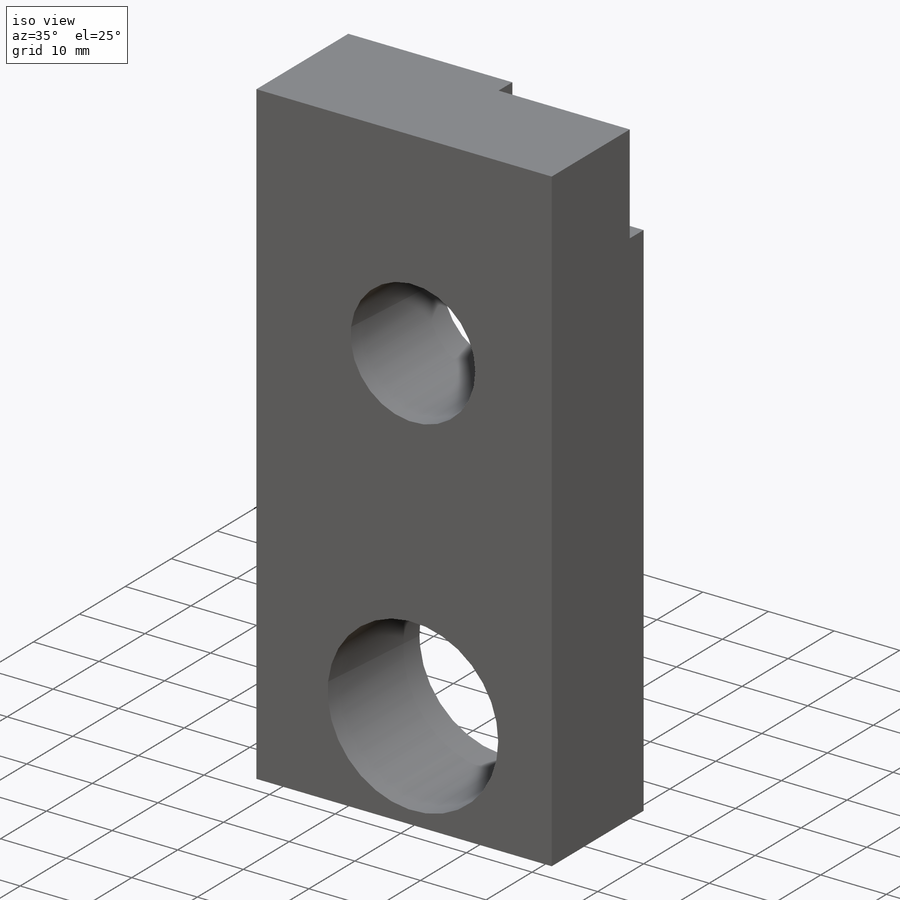
[diagram: iso view]
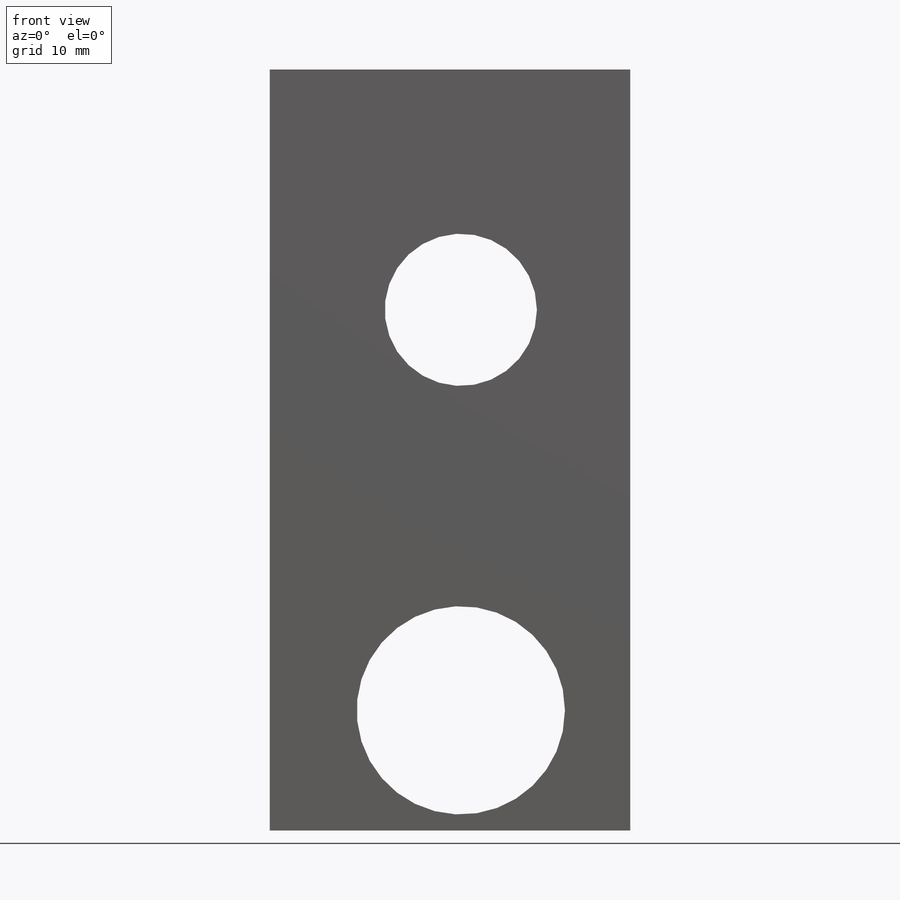
[diagram: front view]
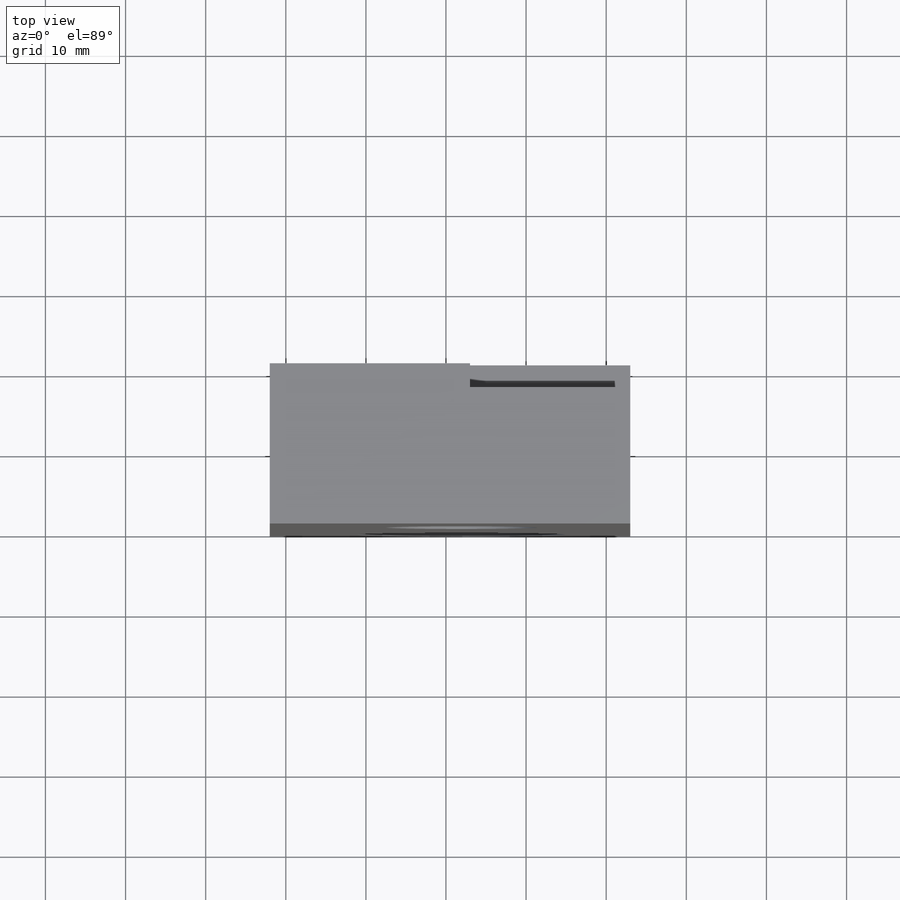
[diagram: top view]
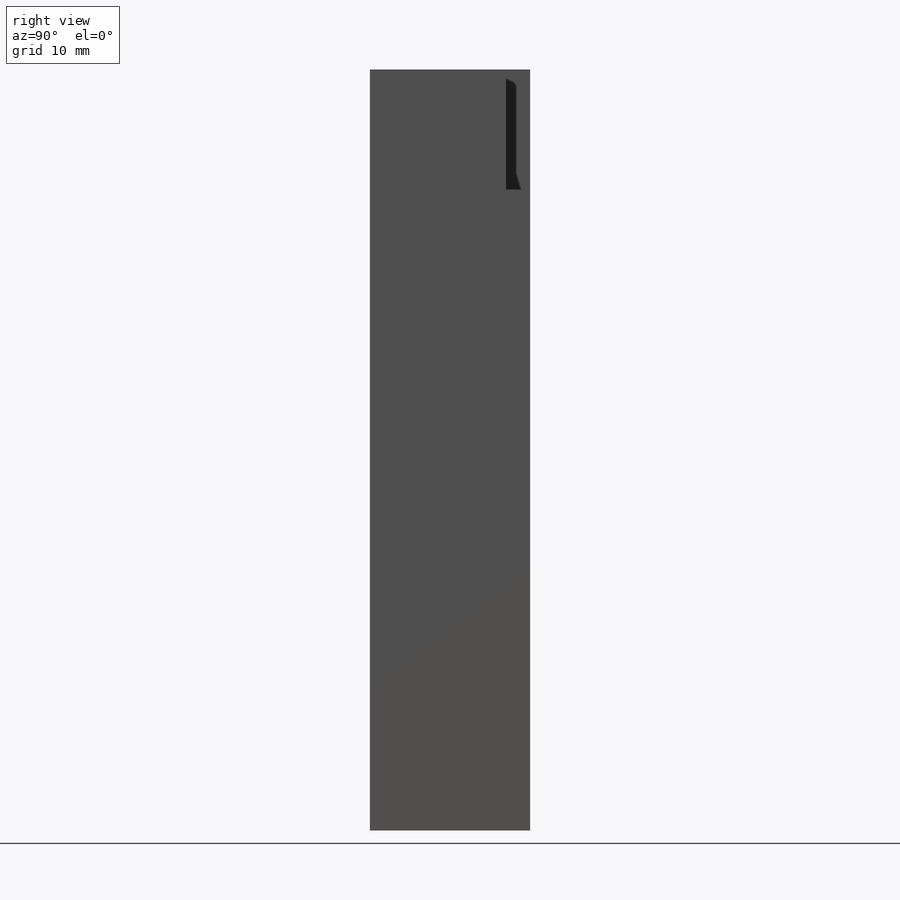
[diagram: right view]
SOLIDWORKS PART (.sldprt)
format: sldprt  version: not decoded by parser v0  size: 259,584 bytes
history: native  units: mm
features: sketch x8, cut_extrude x6, thread x4, plane x3, extrude x2, material x1 (+9 scaffold rows collapsed)
feature tree (33):
  scaffold x9  (default folders/planes/origin — collapsed)
  material  "Material <nicht festgelegt>"
  plane  "Ebene vorne"
  plane  "Ebene oben"
  plane  "Ebene rechts"
  sketch  "Skizze1"  dims[D1=43.0mm D2=95.0mm]
  extrude  "Aufsatz-Linear austragen1"  Depth=20mm
  sketch  "Skizze2"  dims[D1=26.0mm D2=21.15mm D3=80.0mm]
  cut_extrude  "Schnitt-Linear austragen1"  Depth=34mm
  sketch  "Skizze3"  dims[D1=19.0mm D2=21.15mm D3=30.0mm]
  cut_extrude  "Schnitt-Linear austragen2"  Depth=34mm
  sketch  "Skizze4"  dims[D1=20.0mm D2=3.0mm]
  cut_extrude  "Schnitt-Linear austragen3"  Depth=15mm
  sketch  "Skizze8"  dims[D1=3.24mm D2=6.0mm D3=5.0mm]
  cut_extrude  "Schnitt-Linear austragen6"  [1 undecoded]
  thread  "Gewindedarstellung3"  Diameter=5mm  [1 undecoded]
  sketch  "Skizze9"  dims[D1=3.24mm D2=5.0mm D3=6.0mm]
  cut_extrude  "Schnitt-Linear austragen7"  [1 undecoded]
  thread  "Gewindedarstellung4"  Diameter=5mm  [1 undecoded]
  sketch  "Skizze10"  dims[D5=3.0mm D6=3.0mm D1=15.0mm D2=15.0mm D3=4.35mm D4=35.0mm]
  cut_extrude  "Schnitt-Linear austragen8"  [1 undecoded]
  thread  "Gewindedarstellung5"  Diameter=12mm  [1 undecoded]
  thread  "Gewindedarstellung6"  Diameter=12mm  [1 undecoded]
  sketch  "Skizze11"
  extrude  "Aufsatz-Linear austragen2"  Depth=2mm
decode coverage: 16 of 20 modeling features carry decoded parameters
note: 7 parameter values undecoded
summary: no parameter record found for 3 features
note: suppression state not decoded; provenance and decode notes live in map.json
